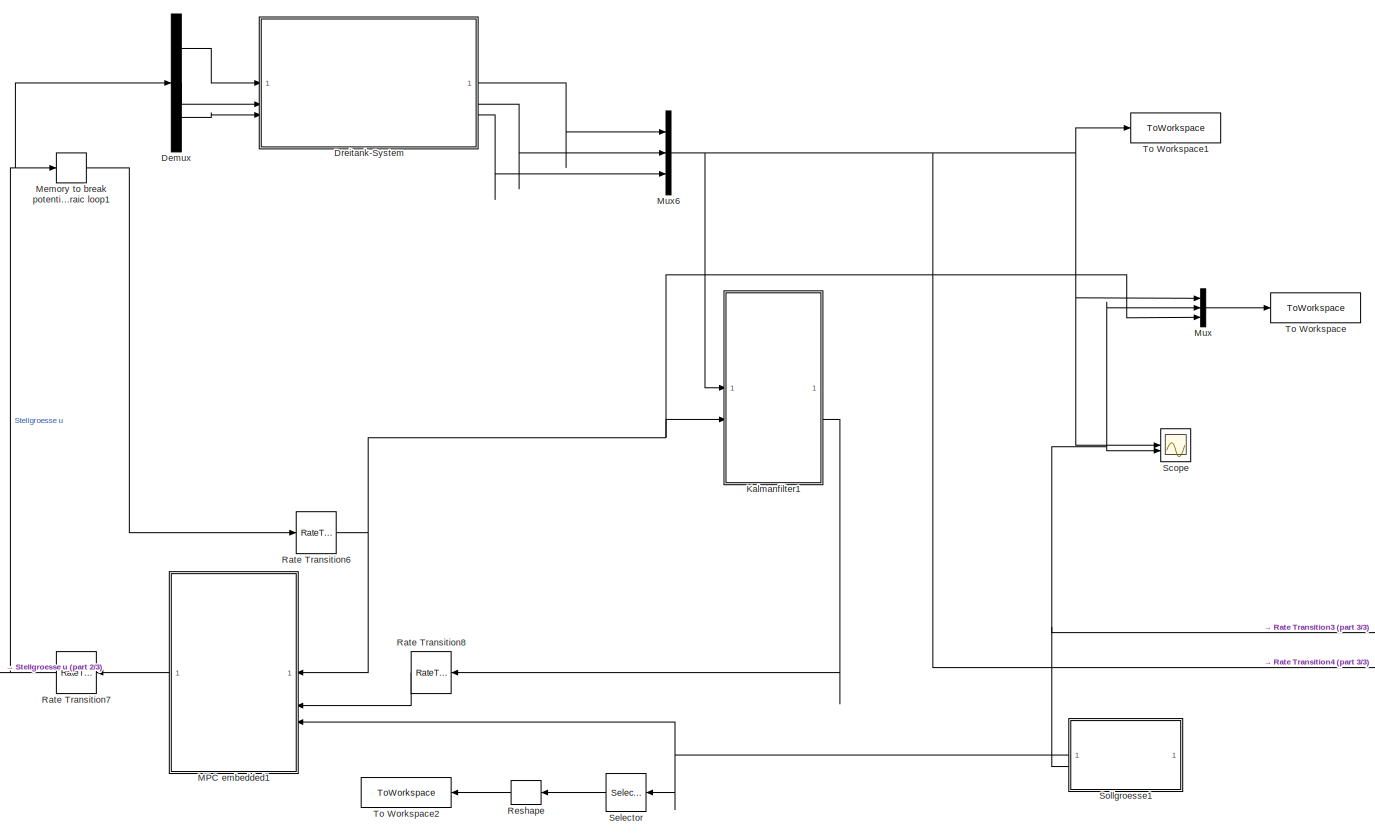
[diagram: root canvas - part 1/3, left side, full height]
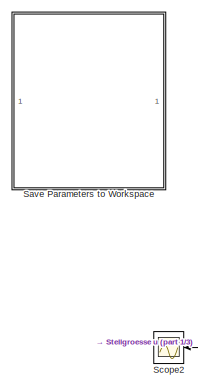
[diagram: root canvas - part 2/3, middle left region]
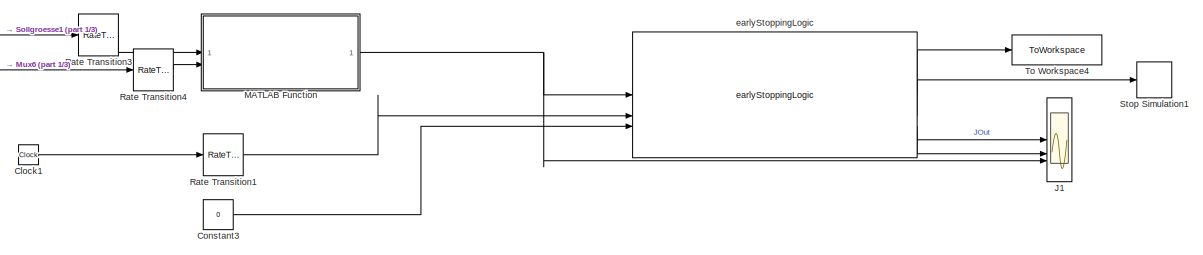
[diagram: root canvas - part 3/3, bottom right region]
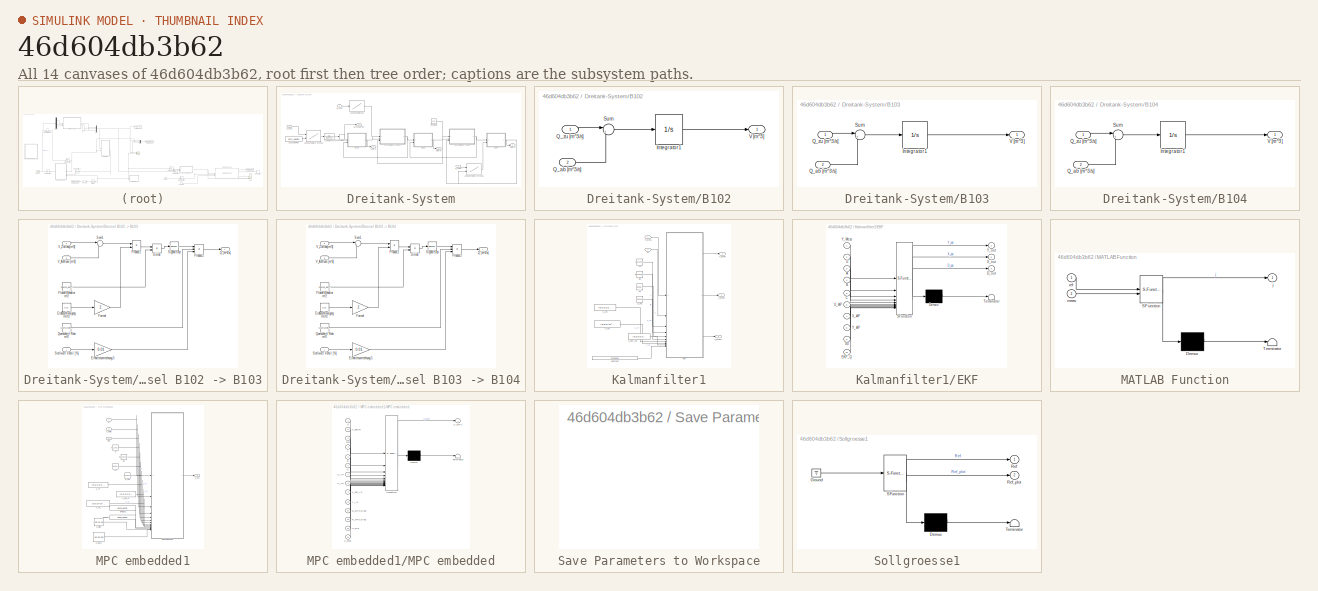
[diagram: thumbnail index - all 14 canvases of the model, root first then tree order]
MODEL slx_46d604db3b62
KIND model
CONFIG AbsTol = auto
CONFIG EnableMultiTasking = on
CONFIG FixedStep = auto
CONFIG MaxStep = 0.01
CONFIG MinStep = auto
CONFIG PreLoadFcn = A = [0 1;-1 -1];\nB = [0 ; 1];\nC = [1 0];\n\n\nX0 = [0;0];\nX_dot0 = [0;0];\nY0 = [0;];\nU0 = [0];\n\nX_AP = X0;\nU_AP = U0;\nY_AP = Y0;\nX_dot_AP = X_dot0;
CONFIG RelTol = 1e-3
CONFIG SampleTimeConstraint = Unconstrained
CONFIG SolverName = ode3
CONFIG StartTime = 0.0
CONFIG StopTime = 150
BLOCK [Clock] Clock1
BLOCK [Constant] Constant3
  Value = 0
BLOCK [Demux] Demux
  Outputs = 3
BLOCK [SubSystem] Dreitank-System
BLOCK [Constant] Dreitank-System/B101 Volumen
  OutDataTypeStr = double
  Value = B101_Volumen
BLOCK [SubSystem] Dreitank-System/B102
BLOCK [Integrator] Dreitank-System/B102/Integrator1
  ContinuousStateAttributes = 'Volumen_B102'
  InitialCondition = Initial_Volumen
  LimitOutput = on
  LowerSaturationLimit = 0
  UpperSaturationLimit = 10*10^-3
BLOCK [Inport] Dreitank-System/B102/Q_ab [m^3//s]
  Port = 2
BLOCK [Inport] Dreitank-System/B102/Q_zu [m^3//s]
BLOCK [Sum] Dreitank-System/B102/Sum
  Inputs = |+-
BLOCK [Outport] Dreitank-System/B102/V [m^3]
BLOCK [SubSystem] Dreitank-System/B103
BLOCK [Integrator] Dreitank-System/B103/Integrator1
  ContinuousStateAttributes = 'Volumen_B102'
  InitialCondition = Initial_Volumen
  LimitOutput = on
  LowerSaturationLimit = 0
  UpperSaturationLimit = 10*10^-3
BLOCK [Inport] Dreitank-System/B103/Q_ab [m^3//s]
  Port = 2
BLOCK [Inport] Dreitank-System/B103/Q_zu [m^3//s]
BLOCK [Sum] Dreitank-System/B103/Sum
  Inputs = |+-
BLOCK [Outport] Dreitank-System/B103/V [m^3]
BLOCK [SubSystem] Dreitank-System/B104
BLOCK [Integrator] Dreitank-System/B104/Integrator1
  ContinuousStateAttributes = 'Volumen_B102'
  InitialCondition = Initial_Volumen
  LimitOutput = on
  LowerSaturationLimit = 0
  UpperSaturationLimit = 10*10^-3
BLOCK [Inport] Dreitank-System/B104/Q_ab [m^3//s]
  Port = 2
BLOCK [Inport] Dreitank-System/B104/Q_zu [m^3//s]
BLOCK [Sum] Dreitank-System/B104/Sum
  Inputs = |+-
BLOCK [Outport] Dreitank-System/B104/V [m^3]
BLOCK [Constant] Dreitank-System/Constant1
  Value = 100
BLOCK [SubSystem] Dreitank-System/Drossel B102 -> B103
BLOCK [Product] Dreitank-System/Drossel B102 -> B103/Divide
  Inputs = */
BLOCK [Gain] Dreitank-System/Drossel B102 -> B103/Einheitenumrechnung 5
  Gain = 0.01
BLOCK [Constant] Dreitank-System/Drossel B102 -> B103/Erdbeschleunigung m//s^2
  OutDataTypeStr = double
  Value = 9.81
BLOCK [Constant] Dreitank-System/Drossel B102 -> B103/Fläche Behälter m^2
  OutDataTypeStr = double
  Value = Flaeche_Behaelter
BLOCK [Gain] Dreitank-System/Drossel B102 -> B103/Formel
  Gain = 2
BLOCK [Product] Dreitank-System/Drossel B102 -> B103/Product1
  RndMeth = Zero
BLOCK [Product] Dreitank-System/Drossel B102 -> B103/Product2
  Inputs = 3
  RndMeth = Zero
BLOCK [Outport] Dreitank-System/Drossel B102 -> B103/Q [m^3//s]
BLOCK [Constant] Dreitank-System/Drossel B102 -> B103/Querschnitt Rohr m^2
  OutDataTypeStr = double
  Value = Querschnitt_Rohr
BLOCK [Sqrt] Dreitank-System/Drossel B102 -> B103/Signed Sqrt
  Operator = signedSqrt
BLOCK [Inport] Dreitank-System/Drossel B102 -> B103/Stellwert Ventil [%]
BLOCK [Sum] Dreitank-System/Drossel B102 -> B103/Sum1
  Inputs = |+-
BLOCK [Inport] Dreitank-System/Drossel B102 -> B103/V_Abfluss [m^3]
  Port = 3
BLOCK [Inport] Dreitank-System/Drossel B102 -> B103/V_Zufluss[m^3]
  Port = 2
BLOCK [SubSystem] Dreitank-System/Drossel B103 -> B104
BLOCK [Product] Dreitank-System/Drossel B103 -> B104/Divide
  Inputs = */
BLOCK [Gain] Dreitank-System/Drossel B103 -> B104/Einheitenumrechnung 5
  Gain = 0.01
BLOCK [Constant] Dreitank-System/Drossel B103 -> B104/Erdbeschleunigung m//s^2
  OutDataTypeStr = double
  Value = 9.81
BLOCK [Constant] Dreitank-System/Drossel B103 -> B104/Fläche Behälter m^2
  OutDataTypeStr = double
  Value = Flaeche_Behaelter
BLOCK [Gain] Dreitank-System/Drossel B103 -> B104/Formel
  Gain = 2
BLOCK [Product] Dreitank-System/Drossel B103 -> B104/Product1
  RndMeth = Zero
BLOCK [Product] Dreitank-System/Drossel B103 -> B104/Product2
  Inputs = 3
  RndMeth = Zero
BLOCK [Outport] Dreitank-System/Drossel B103 -> B104/Q [m^3//s]
BLOCK [Constant] Dreitank-System/Drossel B103 -> B104/Querschnitt Rohr m^2
  OutDataTypeStr = double
  Value = Querschnitt_Rohr
BLOCK [Sqrt] Dreitank-System/Drossel B103 -> B104/Signed Sqrt
  Operator = signedSqrt
BLOCK [Inport] Dreitank-System/Drossel B103 -> B104/Stellwert Ventil [%]
BLOCK [Sum] Dreitank-System/Drossel B103 -> B104/Sum1
  Inputs = |+-
BLOCK [Inport] Dreitank-System/Drossel B103 -> B104/V_Abfluss [m^3]
  Port = 3
BLOCK [Inport] Dreitank-System/Drossel B103 -> B104/V_Zufluss[m^3]
  Port = 2
BLOCK [Lookup2D] Dreitank-System/Lookup Table (2-D) P101
  ColumnIndex = [40,130]*10^-3
  InputSameDT = off
  LookUpMeth = Interpolation-Use End Values
  RowIndex = [50,55,60,65,70,75,80,85,90,95,100]
  SaturateOnIntegerOverflow = off
  Table = reshape([0,0.0606,0.2450,0.3378,0.4184,0.5002,0.5801,0.6551,0.7138,0.7746,0.8206,0,0.2799,0.3497,0.4278,0.5053,0.5810,0.6481,0.7168,0.7695,0.8350,0.8786]*10^-3,11,2)
BLOCK [Lookup2D] Dreitank-System/Lookup Table (2-D) V106
  ColumnIndex = [2,2.8,10]*10^-3
  InputSameDT = off
  LookUpMeth = Interpolation-Use End Values
  RowIndex = [15,20,25,30,35,40,45,50,55,60,65,70,75,80,85]
  SaturateOnIntegerOverflow = off
  Table = reshape([0,0,0,0,0,0,0,0,0,0,0,0,0,0,0,0,0.032,0.097,0.179,0.262,0.361,0.475,0.604,0.902,1.089,1.318,1.536,1.685,1.853,2.029,0,0.032,0.097,0.179,0.262,0.361,0.475,0.604,0.902,1.089,1.318,1.536,1.685,1.853,2.029]*10^-3,15,3)
BLOCK [Lookup] Dreitank-System/Lookup Table V101
  InputValues = [0,20,25,30,35,40,45,50,55,60,65,70,75,80,85,90,100]
  LookUpMeth = Interpolation-Use End Values
  SaturateOnIntegerOverflow = off
  Table = [100,96,90,88,84,76,68,60,49,41,34,27,22,19,16,12,0]
BLOCK [Outport] Dreitank-System/Q_P101 [m^3//s]
  Port = 4
BLOCK [TransferFcn] Dreitank-System/Transfer Fcn
  Denominator = [1.2341 1]
BLOCK [TransportDelay] Dreitank-System/Transport Delay
  DelayTime = 1.1
BLOCK [Inport] Dreitank-System/U_P101
BLOCK [Inport] Dreitank-System/U_V101 
  Port = 2
BLOCK [Inport] Dreitank-System/U_V106
  Port = 3
BLOCK [Outport] Dreitank-System/V2 [m^3]
BLOCK [Outport] Dreitank-System/V3 [m^3]
  Port = 2
BLOCK [Outport] Dreitank-System/V4 [m^3]
  Port = 3
BLOCK [Scope] J1
  Floating = off
  NumInputPorts = 3
  ScopeSpecificationString = Simulink.scopes.TimeScopeBlockCfg('CurrentConfiguration', extmgr.ConfigurationSet(extmgr.Configuration('Core','General UI',true),extmgr.Configuration('Core','Source UI',true),extmgr.Configuration('Sources','WiredSimulink',true,'DataLoggingVariableName','ScopeData1'),extmgr.Configuration('Visuals','Time Domain',true,'SerializedDisplays',{struct('MinYLimReal','-0.18628','MaxYLimReal','1.6765','YLabe...<+2196ch>
BLOCK [SubSystem] Kalmanfilter1
BLOCK [Constant] Kalmanfilter1/A2
  Value = [-0.1234,0.1234,0, 0.025,0,0;0.1234,-0.3702,0.2468, 0,0.025,0 ;0,0.2468,-0.2468, 0,0,0.025; 0, 0, 0, 0, 0, 0;0, 0, 0, 0, 0, 0;0, 0, 0, 0, 0, 0]
  VectorParams1D = off
BLOCK [Constant] Kalmanfilter1/B2
  Value = [0.01582,0.01117,0;0,-0.01117,0;0,0,-0.0228;0,0,0;0,0,0;0,0,0]*10^-3
  VectorParams1D = off
BLOCK [Constant] Kalmanfilter1/C2
  Value = [1,0,0,0,0,0;0,1,0,0,0,0;0,0,1,0,0,0]
  VectorParams1D = off
BLOCK [Constant] Kalmanfilter1/Constant
  Value = EKF.lambda
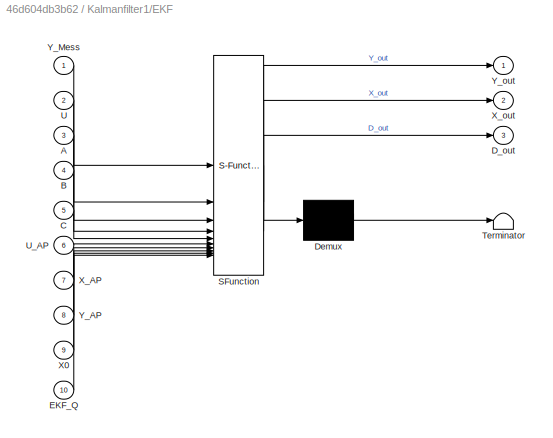
BLOCK [SubSystem] Kalmanfilter1/EKF
  ErrorFcn = Stateflow.Translate.translate
  PermitHierarchicalResolution = ExplicitOnly
  SFBlockType = MATLAB Function
  TreatAsAtomicUnit = on
BLOCK [Demux] Kalmanfilter1/EKF/ Demux 
  Outputs = 1
BLOCK [S-Function] Kalmanfilter1/EKF/ SFunction 
  EnableBusSupport = on
  FunctionName = sf_sfun
  Parameters = T_MPC
  PortCounts = [10 4]
  SFcnIsStateOwnerBlock = off
  SFunctionDeploymentMode = off
  Tag = Stateflow S-Function 3
BLOCK [Terminator] Kalmanfilter1/EKF/ Terminator 
BLOCK [Inport] Kalmanfilter1/EKF/A
  Port = 3
BLOCK [Inport] Kalmanfilter1/EKF/B
  Port = 4
BLOCK [Inport] Kalmanfilter1/EKF/C
  Port = 5
BLOCK [Outport] Kalmanfilter1/EKF/D_out
  Port = 3
BLOCK [Inport] Kalmanfilter1/EKF/EKF_Q
  Port = 10
BLOCK [Inport] Kalmanfilter1/EKF/U
  Port = 2
BLOCK [Inport] Kalmanfilter1/EKF/U_AP
  Port = 6
BLOCK [Inport] Kalmanfilter1/EKF/X0
  Port = 9
BLOCK [Inport] Kalmanfilter1/EKF/X_AP
  Port = 7
BLOCK [Outport] Kalmanfilter1/EKF/X_out
  Port = 2
  VectorParamsAs1DForOutWhenUnconnected = off
BLOCK [Inport] Kalmanfilter1/EKF/Y_AP
  Port = 8
BLOCK [Inport] Kalmanfilter1/EKF/Y_Mess
BLOCK [Outport] Kalmanfilter1/EKF/Y_out
  VectorParamsAs1DForOutWhenUnconnected = off
BLOCK [Inport] Kalmanfilter1/U
  Port = 2
BLOCK [Constant] Kalmanfilter1/U_AP1
  Value = [70;43;44]
  VectorParams1D = off
BLOCK [Constant] Kalmanfilter1/X_AP1
  Value = [8;6;5;0;0;0]*10^-3
  VectorParams1D = off
BLOCK [Constant] Kalmanfilter1/X_dot_AP1
  Value = [0;0;0;0;0;0]
  VectorParams1D = off
BLOCK [Outport] Kalmanfilter1/X_estim
  Port = 2
  VectorParamsAs1DForOutWhenUnconnected = off
BLOCK [Outport] Kalmanfilter1/X_estim1
  Port = 3
  VectorParamsAs1DForOutWhenUnconnected = off
BLOCK [Constant] Kalmanfilter1/Y_AP1
  Value = [8;6;5]*10^-3
  VectorParams1D = off
BLOCK [Inport] Kalmanfilter1/Y_Mess
BLOCK [Outport] Kalmanfilter1/Y_estim
  VectorParamsAs1DForOutWhenUnconnected = off
BLOCK [SubSystem] MATLAB Function
  ErrorFcn = Stateflow.Translate.translate
  PermitHierarchicalResolution = ExplicitOnly
  SFBlockType = MATLAB Function
  TreatAsAtomicUnit = on
BLOCK [Demux] MATLAB Function/ Demux 
  Outputs = 1
BLOCK [S-Function] MATLAB Function/ SFunction 
  EnableBusSupport = on
  FunctionName = sf_sfun
  PortCounts = [2 2]
  SFcnIsStateOwnerBlock = off
  SFunctionDeploymentMode = off
  Tag = Stateflow S-Function 2
BLOCK [Terminator] MATLAB Function/ Terminator 
BLOCK [Outport] MATLAB Function/j
BLOCK [Inport] MATLAB Function/meas
  Port = 2
BLOCK [Inport] MATLAB Function/ref
BLOCK [SubSystem] MPC embedded1
BLOCK [Constant] MPC embedded1/A1
  Value = [-0.1234,0.1234,0, 0.025,0,0;0.1234,-0.3702,0.2468, 0,0.025,0 ;0,0.2468,-0.2468, 0,0,0.025; 0, 0, 0, 0, 0, 0;0, 0, 0, 0, 0, 0;0, 0, 0, 0, 0, 0]
  VectorParams1D = off
BLOCK [Constant] MPC embedded1/B1
  Value = [0.01582,0.01117,0;0,-0.01117,0;0,0,-0.0228;0,0,0;0,0,0;0,0,0]*10^-3
  VectorParams1D = off
BLOCK [Constant] MPC embedded1/C1
  Value = [1,0,0,0,0,0;0,1,0,0,0,0;0,0,1,0,0,0]
  VectorParams1D = off
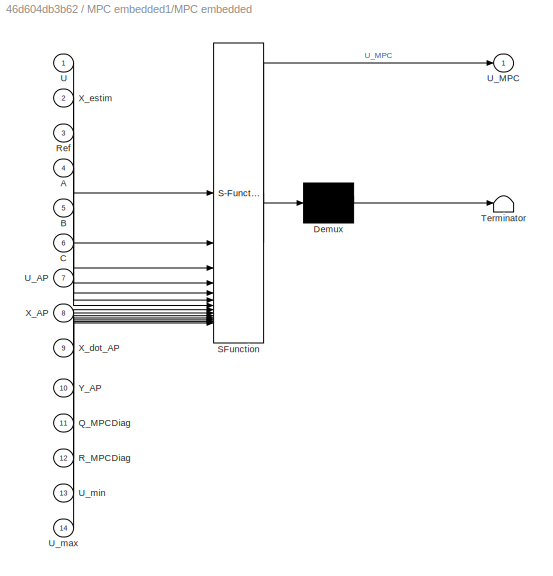
BLOCK [SubSystem] MPC embedded1/MPC embedded
  ErrorFcn = Stateflow.Translate.translate
  PermitHierarchicalResolution = ExplicitOnly
  SFBlockType = MATLAB Function
  TreatAsAtomicUnit = on
BLOCK [Demux] MPC embedded1/MPC embedded/ Demux 
  Outputs = 1
BLOCK [S-Function] MPC embedded1/MPC embedded/ SFunction 
  EnableBusSupport = on
  FunctionName = sf_sfun
  Parameters = N1,N2,Nu,T_MPC
  PortCounts = [14 2]
  SFcnIsStateOwnerBlock = off
  SFunctionDeploymentMode = off
  Tag = Stateflow S-Function 5
BLOCK [Terminator] MPC embedded1/MPC embedded/ Terminator 
BLOCK [Inport] MPC embedded1/MPC embedded/A
  Port = 4
BLOCK [Inport] MPC embedded1/MPC embedded/B
  Port = 5
BLOCK [Inport] MPC embedded1/MPC embedded/C
  Port = 6
BLOCK [Inport] MPC embedded1/MPC embedded/Q_MPCDiag
  Port = 11
BLOCK [Inport] MPC embedded1/MPC embedded/R_MPCDiag
  Port = 12
BLOCK [Inport] MPC embedded1/MPC embedded/Ref
  Port = 3
BLOCK [Inport] MPC embedded1/MPC embedded/U
BLOCK [Inport] MPC embedded1/MPC embedded/U_AP
  Port = 7
BLOCK [Outport] MPC embedded1/MPC embedded/U_MPC
  VectorParamsAs1DForOutWhenUnconnected = off
BLOCK [Inport] MPC embedded1/MPC embedded/U_max
  Port = 14
BLOCK [Inport] MPC embedded1/MPC embedded/U_min
  Port = 13
BLOCK [Inport] MPC embedded1/MPC embedded/X_AP
  Port = 8
BLOCK [Inport] MPC embedded1/MPC embedded/X_dot_AP
  Port = 9
BLOCK [Inport] MPC embedded1/MPC embedded/X_estim
  Port = 2
BLOCK [Inport] MPC embedded1/MPC embedded/Y_AP
  Port = 10
BLOCK [Inport] MPC embedded1/Ref
  Port = 3
BLOCK [Inport] MPC embedded1/U
BLOCK [Constant] MPC embedded1/U_AP2
  Value = [70;43;44]
  VectorParams1D = off
BLOCK [Constant] MPC embedded1/U_max1
  Value = [90;90;90]
  VectorParams1D = off
BLOCK [Constant] MPC embedded1/U_min1
  Value = [49;10;10]
  VectorParams1D = off
BLOCK [Outport] MPC embedded1/U_out
  VectorParamsAs1DForOutWhenUnconnected = off
BLOCK [Constant] MPC embedded1/X_AP
  Value = [8;6;5;0;0;0]*10^-3
  VectorParams1D = off
BLOCK [Constant] MPC embedded1/X_dot_AP
  Value = [0;0;0;0;0;0]
  VectorParams1D = off
BLOCK [Inport] MPC embedded1/X_estim
  Port = 2
BLOCK [Constant] MPC embedded1/Y_AP1
  Value = [8;6;5]*10^-3
  VectorParams1D = off
BLOCK [Constant] MPC embedded1/lambda1
  Value = MPC.R_MPCDiag
  VectorParams1D = off
BLOCK [Constant] MPC embedded1/lambda2
  Value = MPC.Q_MPCDiag
  VectorParams1D = off
BLOCK [Memory] Memory to break potential algrebraic loop1
BLOCK [Mux] Mux
  DisplayOption = bar
  Inputs = 3
BLOCK [Mux] Mux6
  DisplayOption = bar
  Inputs = 3
BLOCK [RateTransition] Rate Transition1
  OutPortSampleTime = ESSettings.t_obj
BLOCK [RateTransition] Rate Transition3
  OutPortSampleTime = ESSettings.t_obj
BLOCK [RateTransition] Rate Transition4
  OutPortSampleTime = ESSettings.t_obj
BLOCK [RateTransition] Rate Transition6
  OutPortSampleTime = 0.1
  OutPortSampleTimeOpt = Inherit
BLOCK [RateTransition] Rate Transition7
  OutPortSampleTime = 0.1
  OutPortSampleTimeOpt = Inherit
BLOCK [RateTransition] Rate Transition8
  OutPortSampleTime = 0.1
  OutPortSampleTimeOpt = Inherit
BLOCK [Reshape] Reshape
  NameLocation = top
BLOCK [SubSystem] Save Parameters to Workspace
BLOCK [Scope] Scope
  Floating = off
  NumInputPorts = 2
  ScopeSpecificationString = Simulink.scopes.TimeScopeBlockCfg('CurrentConfiguration', extmgr.ConfigurationSet(extmgr.Configuration('Core','General UI',true),extmgr.Configuration('Core','Source UI',true),extmgr.Configuration('Sources','WiredSimulink',true,'DataLoggingVariableName','ScopeData1'),extmgr.Configuration('Visuals','Time Domain',true,'SerializedDisplays',{struct('MinYLimReal','0.00003','MaxYLimReal','0.00974','YLabe...<+1599ch>
BLOCK [Scope] Scope2
  Floating = off
  NumInputPorts = 1
  ScopeSpecificationString = Simulink.scopes.TimeScopeBlockCfg('CurrentConfiguration', extmgr.ConfigurationSet(extmgr.Configuration('Core','General UI',true),extmgr.Configuration('Core','Source UI',true),extmgr.Configuration('Sources','WiredSimulink',true,'DataLoggingVariableName','ScopeData4'),extmgr.Configuration('Visuals','Time Domain',true,'SerializedDisplays',{struct('MinYLimReal','5.125','MaxYLimReal','53.875','YLabelRe...<+1536ch>
BLOCK [Selector] Selector
  IndexOptions = Index vector (dialog),Index vector (dialog)
  Indices = [1:3],1
  InputPortWidth = 3
  NameLocation = top
  NumberOfDimensions = 2
  OutputSizes = 1,1
BLOCK [SubSystem] Sollgroesse1
  ErrorFcn = Stateflow.Translate.translate
  PermitHierarchicalResolution = ExplicitOnly
  SFBlockType = MATLAB Function
  TreatAsAtomicUnit = on
BLOCK [Demux] Sollgroesse1/ Demux 
  Outputs = 1
BLOCK [Ground] Sollgroesse1/ Ground 
BLOCK [S-Function] Sollgroesse1/ SFunction 
  EnableBusSupport = on
  FunctionName = sf_sfun
  Parameters = N1,N2
  PortCounts = [1 3]
  SFcnIsStateOwnerBlock = off
  SFunctionDeploymentMode = off
  Tag = Stateflow S-Function 6
BLOCK [Terminator] Sollgroesse1/ Terminator 
BLOCK [Outport] Sollgroesse1/Ref
  VectorParamsAs1DForOutWhenUnconnected = off
BLOCK [Outport] Sollgroesse1/Ref_plot
  Port = 2
BLOCK [Stop] Stop Simulation1
BLOCK [ToWorkspace] To Workspace
  Commented = on
  FixptAsFi = on
  MaxDataPoints = inf
  SampleTime = -1
  SaveFormat = Timeseries
  VariableName = simout
BLOCK [ToWorkspace] To Workspace1
  FixptAsFi = on
  MaxDataPoints = inf
  SampleTime = 0.1
  SaveFormat = Structure With Time
  VariableName = waterLevels
BLOCK [ToWorkspace] To Workspace2
  FixptAsFi = on
  MaxDataPoints = inf
  NameLocation = top
  SampleTime = 0.1
  SaveFormat = Structure With Time
  VariableName = reference
BLOCK [ToWorkspace] To Workspace4
  FixptAsFi = on
  MaxDataPoints = inf
  SampleTime = -1
  SaveFormat = Structure With Time
  VariableName = j
BLOCK [Reference] earlyStoppingLogic  REF=UtilLib/earlyStoppingLogic
  SourceBlock = UtilLib/earlyStoppingLogic
  SourceType = SubSystem
LINE Clock1:1 -> Rate Transition1:1
LINE Constant3:1 -> earlyStoppingLogic:3
LINE Demux:1 -> Dreitank-System:1
LINE Demux:2 -> Dreitank-System:2
LINE Demux:3 -> Dreitank-System:3
LINE Dreitank-System/B101 Volumen:1 -> Dreitank-System/Lookup Table (2-D) P101:2
LINE Dreitank-System/B102/Integrator1:1 -> Dreitank-System/B102/V [m^3]:1
LINE Dreitank-System/B102/Q_ab [m^3//s]:1 -> Dreitank-System/B102/Sum:2
LINE Dreitank-System/B102/Q_zu [m^3//s]:1 -> Dreitank-System/B102/Sum:1
LINE Dreitank-System/B102/Sum:1 -> Dreitank-System/B102/Integrator1:1
NET Dreitank-System/B102:1 -> Dreitank-System/Drossel B102 -> B103:2, Dreitank-System/V2 [m^3]:1
LINE Dreitank-System/B103/Integrator1:1 -> Dreitank-System/B103/V [m^3]:1
LINE Dreitank-System/B103/Q_ab [m^3//s]:1 -> Dreitank-System/B103/Sum:2
LINE Dreitank-System/B103/Q_zu [m^3//s]:1 -> Dreitank-System/B103/Sum:1
LINE Dreitank-System/B103/Sum:1 -> Dreitank-System/B103/Integrator1:1
NET Dreitank-System/B103:1 -> Dreitank-System/Drossel B102 -> B103:3, Dreitank-System/Drossel B103 -> B104:2, Dreitank-System/V3 [m^3]:1
LINE Dreitank-System/B104/Integrator1:1 -> Dreitank-System/B104/V [m^3]:1
LINE Dreitank-System/B104/Q_ab [m^3//s]:1 -> Dreitank-System/B104/Sum:2
LINE Dreitank-System/B104/Q_zu [m^3//s]:1 -> Dreitank-System/B104/Sum:1
LINE Dreitank-System/B104/Sum:1 -> Dreitank-System/B104/Integrator1:1
NET Dreitank-System/B104:1 -> Dreitank-System/Drossel B103 -> B104:3, Dreitank-System/Lookup Table (2-D) V106:2, Dreitank-System/V4 [m^3]:1
LINE Dreitank-System/Constant1:1 -> Dreitank-System/Drossel B103 -> B104:1
LINE Dreitank-System/Drossel B102 -> B103/Divide:1 -> Dreitank-System/Drossel B102 -> B103/Signed Sqrt:1
LINE Dreitank-System/Drossel B102 -> B103/Einheitenumrechnung 5:1 -> Dreitank-System/Drossel B102 -> B103/Product2:3
LINE Dreitank-System/Drossel B102 -> B103/Erdbeschleunigung m//s^2:1 -> Dreitank-System/Drossel B102 -> B103/Formel:1
LINE Dreitank-System/Drossel B102 -> B103/Fläche Behälter m^2:1 -> Dreitank-System/Drossel B102 -> B103/Divide:2
LINE Dreitank-System/Drossel B102 -> B103/Formel:1 -> Dreitank-System/Drossel B102 -> B103/Product1:2
LINE Dreitank-System/Drossel B102 -> B103/Product1:1 -> Dreitank-System/Drossel B102 -> B103/Divide:1
LINE Dreitank-System/Drossel B102 -> B103/Product2:1 -> Dreitank-System/Drossel B102 -> B103/Q [m^3//s]:1
LINE Dreitank-System/Drossel B102 -> B103/Querschnitt Rohr m^2:1 -> Dreitank-System/Drossel B102 -> B103/Product2:2
LINE Dreitank-System/Drossel B102 -> B103/Signed Sqrt:1 -> Dreitank-System/Drossel B102 -> B103/Product2:1
LINE Dreitank-System/Drossel B102 -> B103/Stellwert Ventil [%]:1 -> Dreitank-System/Drossel B102 -> B103/Einheitenumrechnung 5:1
LINE Dreitank-System/Drossel B102 -> B103/Sum1:1 -> Dreitank-System/Drossel B102 -> B103/Product1:1
LINE Dreitank-System/Drossel B102 -> B103/V_Abfluss [m^3]:1 -> Dreitank-System/Drossel B102 -> B103/Sum1:2
LINE Dreitank-System/Drossel B102 -> B103/V_Zufluss[m^3]:1 -> Dreitank-System/Drossel B102 -> B103/Sum1:1
NET Dreitank-System/Drossel B102 -> B103:1 -> Dreitank-System/B102:2, Dreitank-System/B103:1
LINE Dreitank-System/Drossel B103 -> B104/Divide:1 -> Dreitank-System/Drossel B103 -> B104/Signed Sqrt:1
LINE Dreitank-System/Drossel B103 -> B104/Einheitenumrechnung 5:1 -> Dreitank-System/Drossel B103 -> B104/Product2:3
LINE Dreitank-System/Drossel B103 -> B104/Erdbeschleunigung m//s^2:1 -> Dreitank-System/Drossel B103 -> B104/Formel:1
LINE Dreitank-System/Drossel B103 -> B104/Fläche Behälter m^2:1 -> Dreitank-System/Drossel B103 -> B104/Divide:2
LINE Dreitank-System/Drossel B103 -> B104/Formel:1 -> Dreitank-System/Drossel B103 -> B104/Product1:2
LINE Dreitank-System/Drossel B103 -> B104/Product1:1 -> Dreitank-System/Drossel B103 -> B104/Divide:1
LINE Dreitank-System/Drossel B103 -> B104/Product2:1 -> Dreitank-System/Drossel B103 -> B104/Q [m^3//s]:1
LINE Dreitank-System/Drossel B103 -> B104/Querschnitt Rohr m^2:1 -> Dreitank-System/Drossel B103 -> B104/Product2:2
LINE Dreitank-System/Drossel B103 -> B104/Signed Sqrt:1 -> Dreitank-System/Drossel B103 -> B104/Product2:1
LINE Dreitank-System/Drossel B103 -> B104/Stellwert Ventil [%]:1 -> Dreitank-System/Drossel B103 -> B104/Einheitenumrechnung 5:1
LINE Dreitank-System/Drossel B103 -> B104/Sum1:1 -> Dreitank-System/Drossel B103 -> B104/Product1:1
LINE Dreitank-System/Drossel B103 -> B104/V_Abfluss [m^3]:1 -> Dreitank-System/Drossel B103 -> B104/Sum1:2
LINE Dreitank-System/Drossel B103 -> B104/V_Zufluss[m^3]:1 -> Dreitank-System/Drossel B103 -> B104/Sum1:1
NET Dreitank-System/Drossel B103 -> B104:1 -> Dreitank-System/B103:2, Dreitank-System/B104:1
LINE Dreitank-System/Lookup Table (2-D) P101:1 -> Dreitank-System/Transfer Fcn:1
LINE Dreitank-System/Lookup Table (2-D) V106:1 -> Dreitank-System/B104:2
LINE Dreitank-System/Lookup Table V101:1 -> Dreitank-System/Drossel B102 -> B103:1
LINE Dreitank-System/Transfer Fcn:1 -> Dreitank-System/Transport Delay:1
NET Dreitank-System/Transport Delay:1 -> Dreitank-System/B102:1, Dreitank-System/Q_P101 [m^3//s]:1
LINE Dreitank-System/U_P101:1 -> Dreitank-System/Lookup Table (2-D) P101:1
LINE Dreitank-System/U_V101 :1 -> Dreitank-System/Lookup Table V101:1
LINE Dreitank-System/U_V106:1 -> Dreitank-System/Lookup Table (2-D) V106:1
LINE Dreitank-System:1 -> Mux6:1
LINE Dreitank-System:2 -> Mux6:2
LINE Dreitank-System:3 -> Mux6:3
LINE Kalmanfilter1/A2:1 -> Kalmanfilter1/EKF:3
LINE Kalmanfilter1/B2:1 -> Kalmanfilter1/EKF:4
LINE Kalmanfilter1/C2:1 -> Kalmanfilter1/EKF:5
LINE Kalmanfilter1/Constant:1 -> Kalmanfilter1/EKF:10
LINE Kalmanfilter1/EKF:1 -> Kalmanfilter1/Y_estim:1
LINE Kalmanfilter1/EKF:2 -> Kalmanfilter1/X_estim:1
LINE Kalmanfilter1/EKF:3 -> Kalmanfilter1/X_estim1:1
LINE Kalmanfilter1/U:1 -> Kalmanfilter1/EKF:2
LINE Kalmanfilter1/U_AP1:1 -> Kalmanfilter1/EKF:6
LINE Kalmanfilter1/X_AP1:1 -> Kalmanfilter1/EKF:7
LINE Kalmanfilter1/X_dot_AP1:1 -> Kalmanfilter1/EKF:9
LINE Kalmanfilter1/Y_AP1:1 -> Kalmanfilter1/EKF:8
LINE Kalmanfilter1/Y_Mess:1 -> Kalmanfilter1/EKF:1
LINE Kalmanfilter1:2 -> Rate Transition8:1
NET MATLAB Function:1 -> J1:3, earlyStoppingLogic:1
LINE MPC embedded1/A1:1 -> MPC embedded1/MPC embedded:4
LINE MPC embedded1/B1:1 -> MPC embedded1/MPC embedded:5
LINE MPC embedded1/C1:1 -> MPC embedded1/MPC embedded:6
LINE MPC embedded1/MPC embedded:1 -> MPC embedded1/U_out:1
LINE MPC embedded1/Ref:1 -> MPC embedded1/MPC embedded:3
LINE MPC embedded1/U:1 -> MPC embedded1/MPC embedded:1
LINE MPC embedded1/U_AP2:1 -> MPC embedded1/MPC embedded:7
LINE MPC embedded1/U_max1:1 -> MPC embedded1/MPC embedded:14
LINE MPC embedded1/U_min1:1 -> MPC embedded1/MPC embedded:13
LINE MPC embedded1/X_AP:1 -> MPC embedded1/MPC embedded:8
LINE MPC embedded1/X_dot_AP:1 -> MPC embedded1/MPC embedded:9
LINE MPC embedded1/X_estim:1 -> MPC embedded1/MPC embedded:2
LINE MPC embedded1/Y_AP1:1 -> MPC embedded1/MPC embedded:10
LINE MPC embedded1/lambda1:1 -> MPC embedded1/MPC embedded:12
LINE MPC embedded1/lambda2:1 -> MPC embedded1/MPC embedded:11
LINE MPC embedded1:1 -> Rate Transition7:1
LINE Memory to break potential algrebraic loop1:1 -> Rate Transition6:1
NET Mux6:1 -> Kalmanfilter1:1, Mux:1, Rate Transition4:1, Scope:1, To Workspace1:1
LINE Mux:1 -> To Workspace:1
LINE Rate Transition1:1 -> earlyStoppingLogic:2
LINE Rate Transition3:1 -> MATLAB Function:1
LINE Rate Transition4:1 -> MATLAB Function:2
NET Rate Transition6:1 -> Kalmanfilter1:2, MPC embedded1:1, Mux:3
NET Rate Transition7:1 -> Demux:1, Memory to break potential algrebraic loop1:1, Scope2:1
LINE Rate Transition8:1 -> MPC embedded1:2
LINE Reshape:1 -> To Workspace2:1
LINE Selector:1 -> Reshape:1
NET Sollgroesse1:1 -> MPC embedded1:3, Selector:1
NET Sollgroesse1:2 -> Mux:2, Rate Transition3:1, Scope:2
LINE earlyStoppingLogic:1 -> To Workspace4:1
LINE earlyStoppingLogic:2 -> Stop Simulation1:1
LINE earlyStoppingLogic:3 -> J1:1
LINE earlyStoppingLogic:4 -> J1:2
note: NET lines group one-source signal fan-out (src -> all destinations, sorted); 1:1 wires keep LINE
CHART MATLAB Function states=1 transitions=1
  STATE_LABEL 'eML_blk_kernel()'
  STATE_LABEL 'SCRIPT:\nfunction j  = fcn(ref, meas)\nj = sum(abs(ref-meas));\nend'
CHART Kalmanfilter1/EKF states=1 transitions=1
  STATE_LABEL 'eML_blk_kernel()'
  STATE_LABEL 'SCRIPT:\nfunction [Y_out, X_out, D_out]  = EKF(Y_Mess,U, A,B,C,U_AP,X_AP, Y_AP, X0,EKF_Q, T_MPC) %#codegen\n%%%%%%%%%%%%%%%%%%%%%%%%%%%%%%%%%%%%%%%%%%%%%%%%%%%%%%%%%%%%%%%%%%%%%%%%%%%%%%\n% Einfaches Extended Kalmanfilter zur Bestimmung der Zustände am Ende des aktuellen\n% Zeitschrittes.\n%\n% A,B,C: Linearisierte Systemdarstellung\n% U_AP, X_AP, Y_AP: Absolutgrößen am Arbeitspunkt (Linearisierung)\n% X_...<+2714ch>'
CHART MPC embedded1/MPC embedded states=1 transitions=1
  STATE_LABEL 'eML_blk_kernel()'
  STATE_LABEL 'SCRIPT:\nfunction U_MPC   = MPC_embedded(U,X_estim, Ref, A,B,C,U_AP,X_AP, X_dot_AP, Y_AP,T_MPC, N1, N2, Nu,Q_MPCDiag,R_MPCDiag,U_min, U_max) %#codegen\n%%%%%%%%%%%%%%%%%%%%%%%%%%%%%%%%%%%%%%%%%%%%%%%%%%%%%%%%%%%%%%%%%%%%%%%%%\n% Gedacht als Referenz-/Beispielimplementierung RT-Skript \n% Im Wesentlichen Umsetzung aus RT-Skript.\n% Erweiterung:\n%   -Beschränkung Absolutwert Eingangsgroessen\n%   -Instati...<+3608ch>'
CHART Sollgroesse1 states=1 transitions=1
  STATE_LABEL 'eML_blk_kernel()'
  STATE_LABEL 'SCRIPT:\nfunction [Ref, Ref_plot] = fcn(N1, N2)\n%#codegen\n %Zähler initialisieren\npersistent i\nif isempty(i)\n    i = 1;\nend \n%%%%%%%%%%%%%%%%%%%%%%%%%%%%%5\n% N1: unterer Stellhorizont\n% N2: oberer Stellhorizont\n% Ref: Ausgabematrix für MPC\n% Ref: Ausgabematrix für MPC\n\n%Generierung Sollgröße für MPC\n%Sollgröße für erste Regelgrößen\nW1 =  ones(1,500)*1*10^-3;\nW2 =  ones(1,500)*1*10^-3;\nW3 =  ones(1,...<+1337ch>'
CHART  states=0 transitions=0
CHART  states=0 transitions=0
CHART  states=0 transitions=0
CHART  states=0 transitions=0
